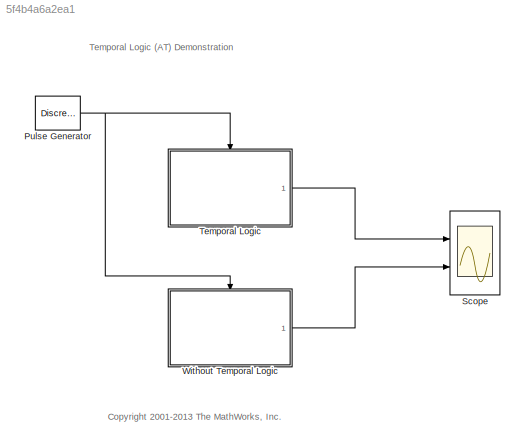
MODEL slx_5f4b4a6a2ea1
KIND model
CONFIG AbsTol = auto
CONFIG EnableMultiTasking = on
CONFIG FixedStep = auto
CONFIG MaxStep = auto
CONFIG MinStep = auto
CONFIG RelTol = 1e-3
CONFIG SampleTimeConstraint = Unconstrained
CONFIG Solver = ode45
CONFIG SolverName = ode45
CONFIG StartTime = 0.0
CONFIG StopTime = 100
BLOCK [DiscretePulseGenerator] Pulse Generator
  Period = 1
  Ports = [0, 1]
  PulseType = Time based
  PulseWidth = 50
BLOCK [Scope] Scope
  NumInputPorts = 2
  Ports = [2]
  ScopeSpecificationString = Simulink.scopes.TimeScopeBlockCfg('CurrentConfiguration', extmgr.ConfigurationSet(extmgr.Configuration('Core','General UI',true),extmgr.Configuration('Core','Source UI',true),extmgr.Configuration('Sources','WiredSimulink',true,'DataLoggingSaveFormat','StructureWithTime'),extmgr.Configuration('Visuals','Time Domain',true,'SerializedDisplays',{struct('MinYLimReal','-1.5','MaxYLimReal','1.5','YLabelR...<+2424ch>
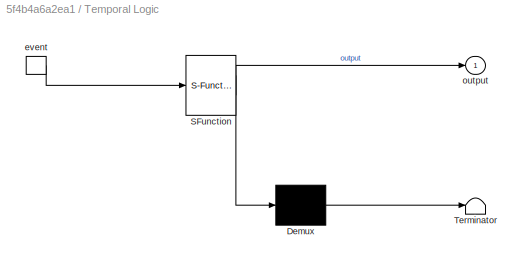
BLOCK [SubSystem] Temporal Logic
  ErrorFcn = Stateflow.Translate.translate
  PermitHierarchicalResolution = ExplicitOnly
  Ports = [0, 1, 0, 1]
  RequestExecContextInheritance = off
  SFBlockType = Chart
  TreatAsAtomicUnit = on
  Variant = off
BLOCK [Demux] Temporal Logic/ Demux 
  Outputs = 1
  Ports = [1, 1]
BLOCK [S-Function] Temporal Logic/ SFunction 
  EnableBusSupport = off
  FunctionName = sf_sfun
  PortCounts = [1 2]
  Ports = [1, 2]
  SFcnIsStateOwnerBlock = off
  SFunctionDeploymentMode = off
  Tag = Stateflow S-Function sf_tlat 1
BLOCK [Terminator] Temporal Logic/ Terminator 
BLOCK [TriggerPort] Temporal Logic/event
  Ports = [0, 1]
  ShowOutputPort = on
  VariantControl = (inherit)
BLOCK [Outport] Temporal Logic/output
  IconDisplay = Port number
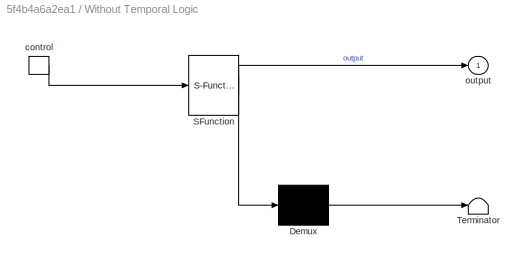
BLOCK [SubSystem] Without Temporal Logic
  ErrorFcn = Stateflow.Translate.translate
  PermitHierarchicalResolution = ExplicitOnly
  Ports = [0, 1, 0, 1]
  RequestExecContextInheritance = off
  SFBlockType = Chart
  TreatAsAtomicUnit = on
  Variant = off
BLOCK [Demux] Without Temporal Logic/ Demux 
  Outputs = 1
  Ports = [1, 1]
BLOCK [S-Function] Without Temporal Logic/ SFunction 
  EnableBusSupport = off
  FunctionName = sf_sfun
  PortCounts = [1 2]
  Ports = [1, 2]
  SFcnIsStateOwnerBlock = off
  SFunctionDeploymentMode = off
  Tag = Stateflow S-Function sf_tlat 2
BLOCK [Terminator] Without Temporal Logic/ Terminator 
BLOCK [TriggerPort] Without Temporal Logic/control
  Ports = [0, 1]
  ShowOutputPort = on
  VariantControl = (inherit)
BLOCK [Outport] Without Temporal Logic/output
  IconDisplay = Port number
ANNOTATION (root): <copyright redacted>
ANNOTATION (root): Temporal Logic (AT) Demonstration
NET Pulse Generator:1 -> Temporal Logic:trigger, Without Temporal Logic:trigger
LINE Temporal Logic:1 -> Scope:1
LINE Without Temporal Logic:1 -> Scope:2
note: NET lines group one-source signal fan-out (src -> all destinations, sorted); 1:1 wires keep LINE
CHART Temporal Logic states=1 transitions=3
  STATE_LABEL 'State\na=5;\non at(a,event):output=1;\non at(2*a,event):output=0;'
CHART Without Temporal Logic states=3 transitions=7
  STATE_LABEL 'A\nen: count = 1;'
  STATE_LABEL '{count++;a=count;}'
  STATE_LABEL 'B\nen:count=a+1;'
  STATE_LABEL '{count++;}'
  STATE_LABEL 'C\nen:count=2*a+1;'
  STATE_LABEL '{count++;}'
